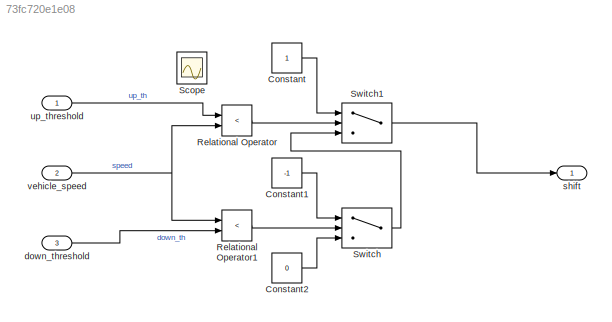
MODEL slx_73fc720e1e08
KIND model
CONFIG AbsTol = auto
CONFIG EnableMultiTasking = on
CONFIG FixedStep = 0.05
CONFIG MaxStep = auto
CONFIG MinStep = auto
CONFIG RelTol = 1e-3
CONFIG SampleTimeConstraint = Unconstrained
CONFIG Solver = FixedStepAuto
CONFIG SolverName = FixedStepAuto
CONFIG StartTime = 0.0
CONFIG StopTime = 30
BLOCK [Constant] Constant
BLOCK [Constant] Constant1
  Value = -1
BLOCK [Constant] Constant2
  Value = 0
BLOCK [RelationalOperator] Relational Operator
  InputSameDT = off
  Operator = <
  OutDataTypeStr = boolean
  Ports = [2, 1]
  RndMeth = Simplest
BLOCK [RelationalOperator] Relational Operator1
  InputSameDT = off
  Operator = <
  OutDataTypeStr = boolean
  Ports = [2, 1]
  RndMeth = Simplest
BLOCK [Scope] Scope
  Floating = off
  IOType = viewer
  NumInputPorts = 1
  Ports = []
  ScopeSpecificationString = Simulink.scopes.TimeScopeBlockCfg('CurrentConfiguration', extmgr.ConfigurationSet(extmgr.Configuration('Core','General UI',true),extmgr.Configuration('Core','Source UI',true),extmgr.Configuration('Sources','WiredSimulink',true),extmgr.Configuration('Visuals','Time Domain',true,'SerializedDisplays',{struct('MinYLimReal','-125000.00000','MaxYLimReal','1125000.00000','YLabelReal','','MinYLimMag','   ...<+2751ch>
BLOCK [Switch] Switch
  InputSameDT = off
  SaturateOnIntegerOverflow = off
  Threshold = 1
BLOCK [Switch] Switch1
  InputSameDT = off
  SaturateOnIntegerOverflow = off
  Threshold = 1
BLOCK [Inport] down_threshold
  IconDisplay = Port number
  OutDataTypeStr = double
  Port = 3
BLOCK [Outport] shift
  IconDisplay = Port number
BLOCK [Inport] up_threshold
  IconDisplay = Port number
  OutDataTypeStr = double
BLOCK [Inport] vehicle_speed
  IconDisplay = Port number
  OutDataTypeStr = double
  Port = 2
LINE Constant1:1 -> Switch:1
LINE Constant2:1 -> Switch:3
LINE Constant:1 -> Switch1:1
LINE Relational Operator1:1 -> Switch:2
LINE Relational Operator:1 -> Switch1:2
LINE Switch1:1 -> shift:1
LINE Switch:1 -> Switch1:3
LINE down_threshold:1 -> Relational Operator1:2
LINE up_threshold:1 -> Relational Operator:1
NET vehicle_speed:1 -> Relational Operator1:1, Relational Operator:2
note: NET lines group one-source signal fan-out (src -> all destinations, sorted); 1:1 wires keep LINE
